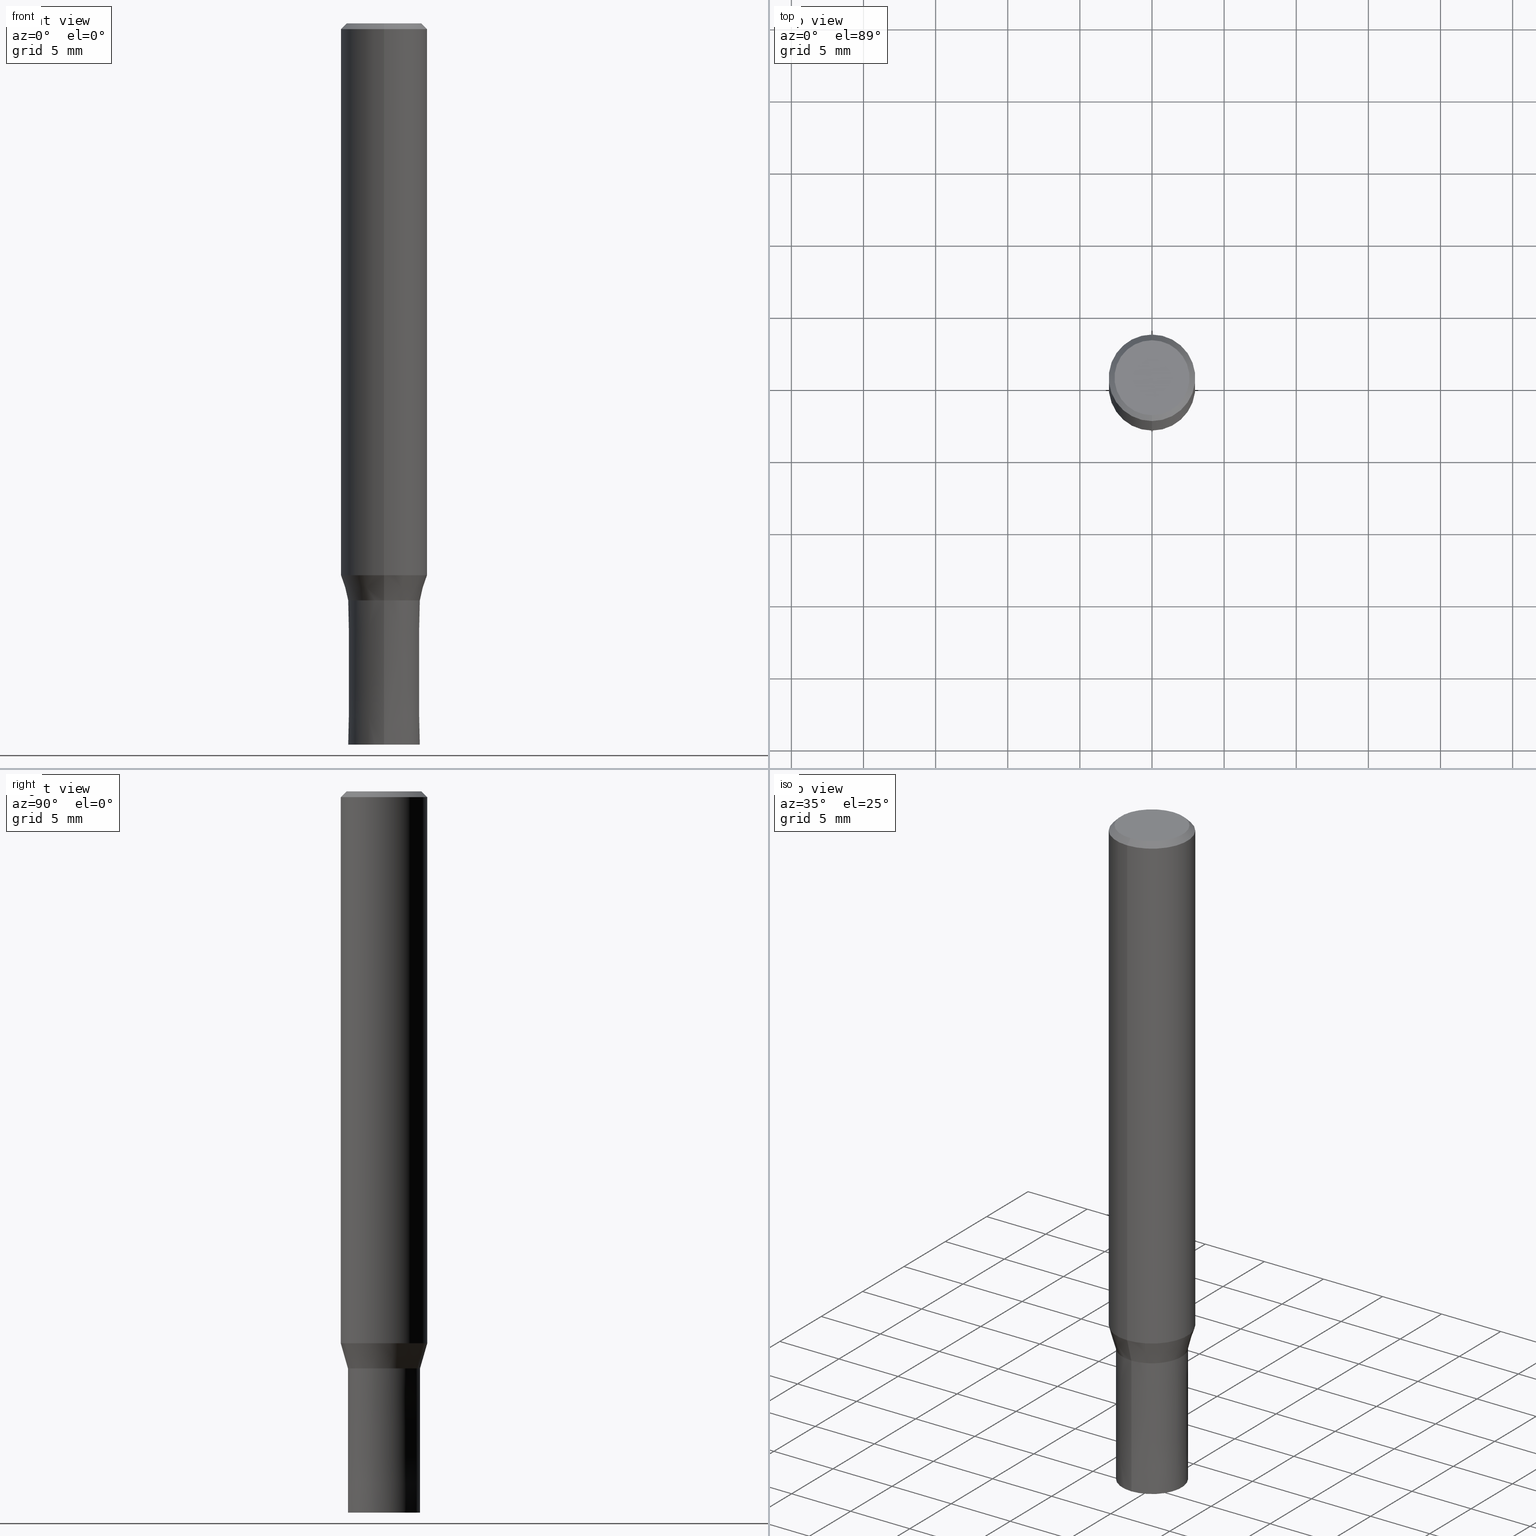
[diagram: canonical four-view strip — front | top / right | iso, engineering-drawing reading convention]
A machine part, canonical four-view strip (front | top / right | iso — engineering-drawing reading convention). The complete STEP part file that produces these views, byte-faithful:
ISO-10303-21;
HEADER;
FILE_DESCRIPTION(('no description'),'unknown implementation level');
FILE_NAME('HMS4050-1000-Huellk.stp','  ',('CIMSOURCE GmbH'),('CADClick - KiM GmbH - www.kimweb.de'),'unknown preprocess','ACIS','unknown authorization');
FILE_SCHEMA(('automotive_design'));
ENDSEC;
DATA;
#1=MECHANICAL_DESIGN_GEOMETRIC_PRESENTATION_REPRESENTATION(' ',(#14,#15,#16,#17,#18,#19,#20,#21,#22,#23,#24,#25,#26,#27,#28,#29,#30,#31,#32,#33,#34,#35,#36,#37,#38,#39,#40,#41,#42,#43,#44,#45,#46,#47,#48,#49,#50,#51,#52,#53,#54,#55,#56,#57,#58,#59,#60,#61,#62,#63,#64),#10);
#2=PRODUCT_DEFINITION_CONTEXT('',#65,'design');
#3=APPLICATION_PROTOCOL_DEFINITION('INTERNATIONAL STANDARD','automotive_design',1994,#65);
#4=PRODUCT_CATEGORY_RELATIONSHIP('NONE','NONE',#66,#67);
#5=SHAPE_DEFINITION_REPRESENTATION(#68,#69);
#6=PRODUCT_DEFINITION_CONTEXT('',#70,'design');
#7=APPLICATION_PROTOCOL_DEFINITION('INTERNATIONAL STANDARD','automotive_design',1994,#70);
#8=PRODUCT_CATEGORY_RELATIONSHIP('NONE','NONE',#71,#72);
#9=SHAPE_DEFINITION_REPRESENTATION(#73,#74);
#10= (GEOMETRIC_REPRESENTATION_CONTEXT(3)GLOBAL_UNCERTAINTY_ASSIGNED_CONTEXT((#77))GLOBAL_UNIT_ASSIGNED_CONTEXT((#79,#80,#81))REPRESENTATION_CONTEXT('NONE','WORKSPACE'));
#14=STYLED_ITEM('',(#83),#84);
#15=STYLED_ITEM('',(#85),#86);
#16=STYLED_ITEM('',(#87),#88);
#17=STYLED_ITEM('',(#89),#90);
#18=STYLED_ITEM('',(#91),#92);
#19=STYLED_ITEM('',(#93),#94);
#20=STYLED_ITEM('',(#95),#96);
#21=STYLED_ITEM('',(#97),#98);
#22=STYLED_ITEM('',(#99),#100);
#23=STYLED_ITEM('',(#101),#102);
#24=STYLED_ITEM('',(#103),#104);
#25=STYLED_ITEM('',(#105),#106);
#26=STYLED_ITEM('',(#107),#108);
#27=STYLED_ITEM('',(#109),#110);
#28=STYLED_ITEM('',(#111),#112);
#29=STYLED_ITEM('',(#113),#114);
#30=STYLED_ITEM('',(#115),#116);
#31=STYLED_ITEM('',(#117),#118);
#32=STYLED_ITEM('',(#119),#120);
#33=STYLED_ITEM('',(#121),#122);
#34=STYLED_ITEM('',(#123),#124);
#35=STYLED_ITEM('',(#125),#126);
#36=STYLED_ITEM('',(#127),#128);
#37=STYLED_ITEM('',(#129),#130);
#38=STYLED_ITEM('',(#131),#132);
#39=STYLED_ITEM('',(#133),#134);
#40=STYLED_ITEM('',(#135),#136);
#41=STYLED_ITEM('',(#137),#138);
#42=STYLED_ITEM('',(#139),#140);
#43=STYLED_ITEM('',(#141),#142);
#44=STYLED_ITEM('',(#143),#144);
#45=STYLED_ITEM('',(#145),#146);
#46=STYLED_ITEM('',(#147),#148);
#47=STYLED_ITEM('',(#149),#150);
#48=STYLED_ITEM('',(#151),#152);
#49=STYLED_ITEM('',(#153),#154);
#50=STYLED_ITEM('',(#155),#156);
#51=STYLED_ITEM('',(#157),#158);
#52=STYLED_ITEM('',(#159),#160);
#53=STYLED_ITEM('',(#161),#162);
#54=STYLED_ITEM('',(#163),#164);
#55=STYLED_ITEM('',(#165),#166);
#56=STYLED_ITEM('',(#167),#168);
#57=STYLED_ITEM('',(#169),#170);
#58=STYLED_ITEM('',(#171),#172);
#59=STYLED_ITEM('',(#173),#174);
#60=STYLED_ITEM('',(#175),#176);
#61=STYLED_ITEM('',(#177),#178);
#62=STYLED_ITEM('',(#179),#180);
#63=STYLED_ITEM('',(#181),#182);
#64=STYLED_ITEM('',(#183),#184);
#65=APPLICATION_CONTEXT(' ');
#66=PRODUCT_CATEGORY('part','NONE');
#67=PRODUCT_RELATED_PRODUCT_CATEGORY('detail',' ',(#185));
#68=PRODUCT_DEFINITION_SHAPE('NONE','NONE',#186);
#69=ADVANCED_BREP_SHAPE_REPRESENTATION('1',(#138,#187),#10);
#70=APPLICATION_CONTEXT(' ');
#71=PRODUCT_CATEGORY('part','NONE');
#72=PRODUCT_RELATED_PRODUCT_CATEGORY('detail',' ',(#188));
#73=PRODUCT_DEFINITION_SHAPE('NONE','NONE',#189);
#74=ADVANCED_BREP_SHAPE_REPRESENTATION('2',(#100,#190),#10);
#77=UNCERTAINTY_MEASURE_WITH_UNIT(LENGTH_MEASURE(1.0E-006),#79,'','');
#79= (CONVERSION_BASED_UNIT('MILLIMETRE',#193)LENGTH_UNIT()NAMED_UNIT(#196));
#80= (NAMED_UNIT(#198)PLANE_ANGLE_UNIT()SI_UNIT($,.RADIAN.));
#81= (NAMED_UNIT(#198)SOLID_ANGLE_UNIT()SI_UNIT($,.STERADIAN.));
#83=PRESENTATION_STYLE_ASSIGNMENT((#204));
#84=VERTEX_POINT('',#205);
#85=PRESENTATION_STYLE_ASSIGNMENT((#206));
#86=EDGE_CURVE('',#168,#84,#207,.T.);
#87=PRESENTATION_STYLE_ASSIGNMENT((#208));
#88=VERTEX_POINT('',#209);
#89=PRESENTATION_STYLE_ASSIGNMENT((#210));
#90=EDGE_CURVE('',#104,#94,#211,.T.);
#91=PRESENTATION_STYLE_ASSIGNMENT((#212));
#92=EDGE_CURVE('',#94,#104,#213,.T.);
#93=PRESENTATION_STYLE_ASSIGNMENT((#214));
#94=VERTEX_POINT('',#215);
#95=PRESENTATION_STYLE_ASSIGNMENT((#216));
#96=VERTEX_POINT('',#217);
#97=PRESENTATION_STYLE_ASSIGNMENT((#218));
#98=EDGE_CURVE('',#96,#120,#219,.T.);
#99=PRESENTATION_STYLE_ASSIGNMENT((#220));
#100=MANIFOLD_SOLID_BREP('2',#221);
#101=PRESENTATION_STYLE_ASSIGNMENT((#222));
#102=EDGE_CURVE('',#146,#128,#223,.T.);
#103=PRESENTATION_STYLE_ASSIGNMENT((#224));
#104=VERTEX_POINT('',#225);
#105=PRESENTATION_STYLE_ASSIGNMENT((#226));
#106=ADVANCED_FACE('',(#227),#228,.T.);
#107=PRESENTATION_STYLE_ASSIGNMENT((#229));
#108=ADVANCED_FACE('',(#230),#231,.T.);
#109=PRESENTATION_STYLE_ASSIGNMENT((#232));
#110=EDGE_CURVE('',#154,#180,#233,.T.);
#111=PRESENTATION_STYLE_ASSIGNMENT((#234));
#112=EDGE_CURVE('',#132,#172,#235,.T.);
#113=PRESENTATION_STYLE_ASSIGNMENT((#236));
#114=ADVANCED_FACE('',(#237),#238,.T.);
#115=PRESENTATION_STYLE_ASSIGNMENT((#239));
#116=EDGE_CURVE('',#156,#88,#240,.T.);
#117=PRESENTATION_STYLE_ASSIGNMENT((#241));
#118=ADVANCED_FACE('',(#242),#243,.T.);
#119=PRESENTATION_STYLE_ASSIGNMENT((#244));
#120=VERTEX_POINT('',#245);
#121=PRESENTATION_STYLE_ASSIGNMENT((#246));
#122=ADVANCED_FACE('',(#247,#248),#249,.T.);
#123=PRESENTATION_STYLE_ASSIGNMENT((#250));
#124=ADVANCED_FACE('',(#251),#252,.T.);
#125=PRESENTATION_STYLE_ASSIGNMENT((#253));
#126=ADVANCED_FACE('',(#254),#255,.T.);
#127=PRESENTATION_STYLE_ASSIGNMENT((#256));
#128=VERTEX_POINT('',#257);
#129=PRESENTATION_STYLE_ASSIGNMENT((#258));
#130=EDGE_CURVE('',#172,#128,#259,.T.);
#131=PRESENTATION_STYLE_ASSIGNMENT((#260));
#132=VERTEX_POINT('',#261);
#133=PRESENTATION_STYLE_ASSIGNMENT((#262));
#134=EDGE_CURVE('',#128,#146,#263,.T.);
#135=PRESENTATION_STYLE_ASSIGNMENT((#264));
#136=EDGE_CURVE('',#104,#180,#265,.T.);
#137=PRESENTATION_STYLE_ASSIGNMENT((#266));
#138=MANIFOLD_SOLID_BREP('1',#267);
#139=PRESENTATION_STYLE_ASSIGNMENT((#268));
#140=ADVANCED_FACE('',(#269),#270,.T.);
#141=PRESENTATION_STYLE_ASSIGNMENT((#271));
#142=ADVANCED_FACE('',(#272),#273,.T.);
#143=PRESENTATION_STYLE_ASSIGNMENT((#274));
#144=EDGE_CURVE('',#172,#132,#275,.T.);
#145=PRESENTATION_STYLE_ASSIGNMENT((#276));
#146=VERTEX_POINT('',#277);
#147=PRESENTATION_STYLE_ASSIGNMENT((#278));
#148=EDGE_CURVE('',#180,#168,#279,.T.);
#149=PRESENTATION_STYLE_ASSIGNMENT((#280));
#150=EDGE_CURVE('',#120,#156,#281,.T.);
#151=PRESENTATION_STYLE_ASSIGNMENT((#282));
#152=ADVANCED_FACE('',(#283),#284,.T.);
#153=PRESENTATION_STYLE_ASSIGNMENT((#285));
#154=VERTEX_POINT('',#286);
#155=PRESENTATION_STYLE_ASSIGNMENT((#287));
#156=VERTEX_POINT('',#288);
#157=PRESENTATION_STYLE_ASSIGNMENT((#289));
#158=EDGE_CURVE('',#180,#154,#290,.T.);
#159=PRESENTATION_STYLE_ASSIGNMENT((#291));
#160=EDGE_CURVE('',#154,#94,#292,.T.);
#161=PRESENTATION_STYLE_ASSIGNMENT((#293));
#162=EDGE_CURVE('',#156,#120,#294,.T.);
#163=PRESENTATION_STYLE_ASSIGNMENT((#295));
#164=EDGE_CURVE('',#96,#88,#296,.T.);
#165=PRESENTATION_STYLE_ASSIGNMENT((#297));
#166=ADVANCED_FACE('',(#298),#299,.T.);
#167=PRESENTATION_STYLE_ASSIGNMENT((#300));
#168=VERTEX_POINT('',#301);
#169=PRESENTATION_STYLE_ASSIGNMENT((#302));
#170=EDGE_CURVE('',#84,#154,#303,.T.);
#171=PRESENTATION_STYLE_ASSIGNMENT((#304));
#172=VERTEX_POINT('',#305);
#173=PRESENTATION_STYLE_ASSIGNMENT((#306));
#174=ADVANCED_FACE('',(#307),#308,.T.);
#175=PRESENTATION_STYLE_ASSIGNMENT((#309));
#176=EDGE_CURVE('',#146,#132,#310,.T.);
#177=PRESENTATION_STYLE_ASSIGNMENT((#311));
#178=EDGE_CURVE('',#84,#168,#312,.T.);
#179=PRESENTATION_STYLE_ASSIGNMENT((#313));
#180=VERTEX_POINT('',#314);
#181=PRESENTATION_STYLE_ASSIGNMENT((#315));
#182=EDGE_CURVE('',#88,#96,#316,.T.);
#183=PRESENTATION_STYLE_ASSIGNMENT((#317));
#184=ADVANCED_FACE('',(#318),#319,.T.);
#185=PRODUCT('1','1','PART-1-DESC',(#320));
#186=PRODUCT_DEFINITION('NONE','NONE',#321,#2);
#187=AXIS2_PLACEMENT_3D('',#322,#323,#324);
#188=PRODUCT('2','2','PART-2-DESC',(#325));
#189=PRODUCT_DEFINITION('NONE','NONE',#326,#6);
#190=AXIS2_PLACEMENT_3D('',#327,#328,#329);
#193=LENGTH_MEASURE_WITH_UNIT(LENGTH_MEASURE(1.0),#330);
#196=DIMENSIONAL_EXPONENTS(1.0,0.0,0.0,0.0,0.0,0.0,0.0);
#198=DIMENSIONAL_EXPONENTS(0.0,0.0,0.0,0.0,0.0,0.0,0.0);
#204=POINT_STYLE(' ',#331,POSITIVE_LENGTH_MEASURE(1.0E-006),#332);
#205=CARTESIAN_POINT('',(3.67381906146713E-016,-3.0,-38.256));
#206=CURVE_STYLE('',#333,POSITIVE_LENGTH_MEASURE(1.0E-006),#334);
#207=CIRCLE('',#335,3.0);
#208=POINT_STYLE(' ',#336,POSITIVE_LENGTH_MEASURE(1.0E-006),#337);
#209=CARTESIAN_POINT('',(0.0,2.5,-50.0));
#210=CURVE_STYLE('',#338,POSITIVE_LENGTH_MEASURE(1.0E-006),#339);
#211=CIRCLE('',#340,2.6);
#212=CURVE_STYLE('',#341,POSITIVE_LENGTH_MEASURE(1.0E-006),#342);
#213=CIRCLE('',#343,2.6);
#214=POINT_STYLE(' ',#344,POSITIVE_LENGTH_MEASURE(1.0E-006),#345);
#215=CARTESIAN_POINT('',(3.18397651993818E-016,-2.6,0.0));
#216=POINT_STYLE(' ',#346,POSITIVE_LENGTH_MEASURE(1.0E-006),#347);
#217=CARTESIAN_POINT('',(3.06151588455594E-016,-2.5,-50.0));
#218=CURVE_STYLE('',#348,POSITIVE_LENGTH_MEASURE(1.0E-006),#349);
#219=LINE('',#350,#351);
#220=SURFACE_STYLE_USAGE(.BOTH.,#352);
#221=CLOSED_SHELL('',(#140,#184,#142,#114));
#222=CURVE_STYLE('',#353,POSITIVE_LENGTH_MEASURE(1.0E-006),#354);
#223=CIRCLE('',#355,2.49995);
#224=POINT_STYLE(' ',#356,POSITIVE_LENGTH_MEASURE(1.0E-006),#357);
#225=CARTESIAN_POINT('',(0.0,2.6,0.0));
#226=SURFACE_STYLE_USAGE(.BOTH.,#358);
#227=FACE_OUTER_BOUND('',#359,.T.);
#228=CONICAL_SURFACE('',#360,2.8,0.78539816339745);
#229=SURFACE_STYLE_USAGE(.BOTH.,#361);
#230=FACE_OUTER_BOUND('',#362,.T.);
#231=CYLINDRICAL_SURFACE('',#363,3.0);
#232=CURVE_STYLE('',#364,POSITIVE_LENGTH_MEASURE(1.0E-006),#365);
#233=CIRCLE('',#366,3.0);
#234=CURVE_STYLE('',#367,POSITIVE_LENGTH_MEASURE(1.0E-006),#368);
#235=CIRCLE('',#369,2.99995);
#236=SURFACE_STYLE_USAGE(.BOTH.,#370);
#237=FACE_OUTER_BOUND('',#371,.T.);
#238=PLANE('',#372);
#239=CURVE_STYLE('',#373,POSITIVE_LENGTH_MEASURE(1.0E-006),#374);
#240=LINE('',#375,#376);
#241=SURFACE_STYLE_USAGE(.BOTH.,#377);
#242=FACE_OUTER_BOUND('',#378,.T.);
#243=CONICAL_SURFACE('',#379,2.8,0.78539816339745);
#244=POINT_STYLE(' ',#380,POSITIVE_LENGTH_MEASURE(1.0E-006),#381);
#245=CARTESIAN_POINT('',(3.06139342392056E-016,-2.4999,-40.0));
#246=SURFACE_STYLE_USAGE(.BOTH.,#382);
#247=FACE_OUTER_BOUND('',#383,.T.);
#248=FACE_BOUND('',#384,.T.);
#249=PLANE('',#385);
#250=SURFACE_STYLE_USAGE(.BOTH.,#386);
#251=FACE_OUTER_BOUND('',#387,.T.);
#252=PLANE('',#388);
#253=SURFACE_STYLE_USAGE(.BOTH.,#389);
#254=FACE_OUTER_BOUND('',#390,.T.);
#255=PLANE('',#391);
#256=POINT_STYLE(' ',#392,POSITIVE_LENGTH_MEASURE(1.0E-006),#393);
#257=CARTESIAN_POINT('',(0.0,2.49995,-40.0));
#258=CURVE_STYLE('',#394,POSITIVE_LENGTH_MEASURE(1.0E-006),#395);
#259=LINE('',#396,#397);
#260=POINT_STYLE(' ',#398,POSITIVE_LENGTH_MEASURE(1.0E-006),#399);
#261=CARTESIAN_POINT('',(3.67375783114944E-016,-2.99995,-38.256));
#262=CURVE_STYLE('',#400,POSITIVE_LENGTH_MEASURE(1.0E-006),#401);
#263=CIRCLE('',#402,2.49995);
#264=CURVE_STYLE('',#403,POSITIVE_LENGTH_MEASURE(1.0E-006),#404);
#265=LINE('',#405,#406);
#266=SURFACE_STYLE_USAGE(.BOTH.,#407);
#267=CLOSED_SHELL('',(#174,#108,#118,#122,#124,#106,#152,#166,#126));
#268=SURFACE_STYLE_USAGE(.BOTH.,#408);
#269=FACE_OUTER_BOUND('',#409,.T.);
#270=CONICAL_SURFACE('',#410,2.49995,9.99999999968777E-006);
#271=SURFACE_STYLE_USAGE(.BOTH.,#411);
#272=FACE_OUTER_BOUND('',#412,.T.);
#273=CONICAL_SURFACE('',#413,2.49995,9.99999999968777E-006);
#274=CURVE_STYLE('',#414,POSITIVE_LENGTH_MEASURE(1.0E-006),#415);
#275=CIRCLE('',#416,2.99995);
#276=POINT_STYLE(' ',#417,POSITIVE_LENGTH_MEASURE(1.0E-006),#418);
#277=CARTESIAN_POINT('',(3.06145465423825E-016,-2.49995,-40.0));
#278=CURVE_STYLE('',#419,POSITIVE_LENGTH_MEASURE(1.0E-006),#420);
#279=LINE('',#421,#422);
#280=CURVE_STYLE('',#423,POSITIVE_LENGTH_MEASURE(1.0E-006),#424);
#281=CIRCLE('',#425,2.4999);
#282=SURFACE_STYLE_USAGE(.BOTH.,#426);
#283=FACE_OUTER_BOUND('',#427,.T.);
#284=CYLINDRICAL_SURFACE('',#428,3.0);
#285=POINT_STYLE(' ',#429,POSITIVE_LENGTH_MEASURE(1.0E-006),#430);
#286=CARTESIAN_POINT('',(3.67381906146713E-016,-3.0,-0.399999999999999));
#287=POINT_STYLE(' ',#431,POSITIVE_LENGTH_MEASURE(1.0E-006),#432);
#288=CARTESIAN_POINT('',(0.0,2.4999,-40.0));
#289=CURVE_STYLE('',#433,POSITIVE_LENGTH_MEASURE(1.0E-006),#434);
#290=CIRCLE('',#435,3.0);
#291=CURVE_STYLE('',#436,POSITIVE_LENGTH_MEASURE(1.0E-006),#437);
#292=LINE('',#438,#439);
#293=CURVE_STYLE('',#440,POSITIVE_LENGTH_MEASURE(1.0E-006),#441);
#294=CIRCLE('',#442,2.4999);
#295=CURVE_STYLE('',#443,POSITIVE_LENGTH_MEASURE(1.0E-006),#444);
#296=CIRCLE('',#445,2.5);
#297=SURFACE_STYLE_USAGE(.BOTH.,#446);
#298=FACE_OUTER_BOUND('',#447,.T.);
#299=CONICAL_SURFACE('',#448,2.74995,0.279208199033747);
#300=POINT_STYLE(' ',#449,POSITIVE_LENGTH_MEASURE(1.0E-006),#450);
#301=CARTESIAN_POINT('',(0.0,3.0,-38.256));
#302=CURVE_STYLE('',#451,POSITIVE_LENGTH_MEASURE(1.0E-006),#452);
#303=LINE('',#453,#454);
#304=POINT_STYLE(' ',#455,POSITIVE_LENGTH_MEASURE(1.0E-006),#456);
#305=CARTESIAN_POINT('',(0.0,2.99995,-38.256));
#306=SURFACE_STYLE_USAGE(.BOTH.,#457);
#307=FACE_OUTER_BOUND('',#458,.T.);
#308=CONICAL_SURFACE('',#459,2.74995,0.279208199033747);
#309=CURVE_STYLE('',#460,POSITIVE_LENGTH_MEASURE(1.0E-006),#461);
#310=LINE('',#462,#463);
#311=CURVE_STYLE('',#464,POSITIVE_LENGTH_MEASURE(1.0E-006),#465);
#312=CIRCLE('',#466,3.0);
#313=POINT_STYLE(' ',#467,POSITIVE_LENGTH_MEASURE(1.0E-006),#468);
#314=CARTESIAN_POINT('',(0.0,3.0,-0.399999999999999));
#315=CURVE_STYLE('',#469,POSITIVE_LENGTH_MEASURE(1.0E-006),#470);
#316=CIRCLE('',#471,2.5);
#317=SURFACE_STYLE_USAGE(.BOTH.,#472);
#318=FACE_OUTER_BOUND('',#473,.T.);
#319=PLANE('',#474);
#320=PRODUCT_CONTEXT('',#65,'mechanical');
#321=PRODUCT_DEFINITION_FORMATION_WITH_SPECIFIED_SOURCE(' ','NONE',#185,.NOT_KNOWN.);
#322=CARTESIAN_POINT('',(0.0,0.0,0.0));
#323=DIRECTION('',(0.0,0.0,1.0));
#324=DIRECTION('',(1.0,0.0,0.0));
#325=PRODUCT_CONTEXT('',#70,'mechanical');
#326=PRODUCT_DEFINITION_FORMATION_WITH_SPECIFIED_SOURCE(' ','NONE',#188,.NOT_KNOWN.);
#327=CARTESIAN_POINT('',(0.0,0.0,0.0));
#328=DIRECTION('',(0.0,0.0,1.0));
#329=DIRECTION('',(1.0,0.0,0.0));
#330= (NAMED_UNIT(#196)LENGTH_UNIT()SI_UNIT(.MILLI.,.METRE.));
#331=PRE_DEFINED_MARKER('');
#332=COLOUR_RGB('',0.498039215803146,0.498039215803146,0.498039215803146);
#333=DRAUGHTING_PRE_DEFINED_CURVE_FONT('continuous');
#334=COLOUR_RGB('',0.498039215803146,0.498039215803146,0.498039215803146);
#335=AXIS2_PLACEMENT_3D('',#476,#477,#478);
#336=PRE_DEFINED_MARKER('');
#337=COLOUR_RGB('',0.800000011920929,0.800000011920929,0.800000011920929);
#338=DRAUGHTING_PRE_DEFINED_CURVE_FONT('continuous');
#339=COLOUR_RGB('',0.498039215803146,0.498039215803146,0.498039215803146);
#340=AXIS2_PLACEMENT_3D('',#479,#480,#481);
#341=DRAUGHTING_PRE_DEFINED_CURVE_FONT('continuous');
#342=COLOUR_RGB('',0.498039215803146,0.498039215803146,0.498039215803146);
#343=AXIS2_PLACEMENT_3D('',#482,#483,#484);
#344=PRE_DEFINED_MARKER('');
#345=COLOUR_RGB('',0.498039215803146,0.498039215803146,0.498039215803146);
#346=PRE_DEFINED_MARKER('');
#347=COLOUR_RGB('',0.800000011920929,0.800000011920929,0.800000011920929);
#348=DRAUGHTING_PRE_DEFINED_CURVE_FONT('continuous');
#349=COLOUR_RGB('',0.800000011920929,0.800000011920929,0.800000011920929);
#350=CARTESIAN_POINT('',(3.06145465423825E-016,-2.49995,-45.0));
#351=VECTOR('',#485,1.0);
#352=SURFACE_SIDE_STYLE('',(#486));
#353=DRAUGHTING_PRE_DEFINED_CURVE_FONT('continuous');
#354=COLOUR_RGB('',0.498039215803146,0.498039215803146,0.498039215803146);
#355=AXIS2_PLACEMENT_3D('',#487,#488,#489);
#356=PRE_DEFINED_MARKER('');
#357=COLOUR_RGB('',0.498039215803146,0.498039215803146,0.498039215803146);
#358=SURFACE_SIDE_STYLE('',(#490));
#359=EDGE_LOOP('',(#491,#492,#493,#494));
#360=AXIS2_PLACEMENT_3D('',#495,#496,#497);
#361=SURFACE_SIDE_STYLE('',(#498));
#362=EDGE_LOOP('',(#499,#500,#501,#502));
#363=AXIS2_PLACEMENT_3D('',#503,#504,#505);
#364=DRAUGHTING_PRE_DEFINED_CURVE_FONT('continuous');
#365=COLOUR_RGB('',0.498039215803146,0.498039215803146,0.498039215803146);
#366=AXIS2_PLACEMENT_3D('',#506,#507,#508);
#367=DRAUGHTING_PRE_DEFINED_CURVE_FONT('continuous');
#368=COLOUR_RGB('',0.498039215803146,0.498039215803146,0.498039215803146);
#369=AXIS2_PLACEMENT_3D('',#509,#510,#511);
#370=SURFACE_SIDE_STYLE('',(#512));
#371=EDGE_LOOP('',(#513,#514));
#372=AXIS2_PLACEMENT_3D('',#515,#516,#517);
#373=DRAUGHTING_PRE_DEFINED_CURVE_FONT('continuous');
#374=COLOUR_RGB('',0.800000011920929,0.800000011920929,0.800000011920929);
#375=CARTESIAN_POINT('',(-3.06145465423825E-016,2.49995,-45.0));
#376=VECTOR('',#518,1.0);
#377=SURFACE_SIDE_STYLE('',(#519));
#378=EDGE_LOOP('',(#520,#521,#522,#523));
#379=AXIS2_PLACEMENT_3D('',#524,#525,#526);
#380=PRE_DEFINED_MARKER('');
#381=COLOUR_RGB('',0.800000011920929,0.800000011920929,0.800000011920929);
#382=SURFACE_SIDE_STYLE('',(#527));
#383=EDGE_LOOP('',(#528,#529));
#384=EDGE_LOOP('',(#530,#531));
#385=AXIS2_PLACEMENT_3D('',#532,#533,#534);
#386=SURFACE_SIDE_STYLE('',(#535));
#387=EDGE_LOOP('',(#536,#537));
#388=AXIS2_PLACEMENT_3D('',#538,#539,#540);
#389=SURFACE_SIDE_STYLE('',(#541));
#390=EDGE_LOOP('',(#542,#543));
#391=AXIS2_PLACEMENT_3D('',#544,#545,#546);
#392=PRE_DEFINED_MARKER('');
#393=COLOUR_RGB('',0.498039215803146,0.498039215803146,0.498039215803146);
#394=DRAUGHTING_PRE_DEFINED_CURVE_FONT('continuous');
#395=COLOUR_RGB('',0.498039215803146,0.498039215803146,0.498039215803146);
#396=CARTESIAN_POINT('',(-3.36760624269385E-016,2.74995,-39.128));
#397=VECTOR('',#547,1.0);
#398=PRE_DEFINED_MARKER('');
#399=COLOUR_RGB('',0.498039215803146,0.498039215803146,0.498039215803146);
#400=DRAUGHTING_PRE_DEFINED_CURVE_FONT('continuous');
#401=COLOUR_RGB('',0.498039215803146,0.498039215803146,0.498039215803146);
#402=AXIS2_PLACEMENT_3D('',#548,#549,#550);
#403=DRAUGHTING_PRE_DEFINED_CURVE_FONT('continuous');
#404=COLOUR_RGB('',0.498039215803146,0.498039215803146,0.498039215803146);
#405=CARTESIAN_POINT('',(-3.42889779070266E-016,2.8,-0.199999999999996));
#406=VECTOR('',#551,1.0);
#407=SURFACE_SIDE_STYLE('',(#552));
#408=SURFACE_SIDE_STYLE('',(#553));
#409=EDGE_LOOP('',(#554,#555,#556,#557));
#410=AXIS2_PLACEMENT_3D('',#558,#559,#560);
#411=SURFACE_SIDE_STYLE('',(#561));
#412=EDGE_LOOP('',(#562,#563,#564,#565));
#413=AXIS2_PLACEMENT_3D('',#566,#567,#568);
#414=DRAUGHTING_PRE_DEFINED_CURVE_FONT('continuous');
#415=COLOUR_RGB('',0.498039215803146,0.498039215803146,0.498039215803146);
#416=AXIS2_PLACEMENT_3D('',#569,#570,#571);
#417=PRE_DEFINED_MARKER('');
#418=COLOUR_RGB('',0.498039215803146,0.498039215803146,0.498039215803146);
#419=DRAUGHTING_PRE_DEFINED_CURVE_FONT('continuous');
#420=COLOUR_RGB('',0.498039215803146,0.498039215803146,0.498039215803146);
#421=CARTESIAN_POINT('',(-3.67381906146713E-016,3.0,-19.328));
#422=VECTOR('',#572,1.0);
#423=DRAUGHTING_PRE_DEFINED_CURVE_FONT('continuous');
#424=COLOUR_RGB('',0.800000011920929,0.800000011920929,0.800000011920929);
#425=AXIS2_PLACEMENT_3D('',#573,#574,#575);
#426=SURFACE_SIDE_STYLE('',(#576));
#427=EDGE_LOOP('',(#577,#578,#579,#580));
#428=AXIS2_PLACEMENT_3D('',#581,#582,#583);
#429=PRE_DEFINED_MARKER('');
#430=COLOUR_RGB('',0.498039215803146,0.498039215803146,0.498039215803146);
#431=PRE_DEFINED_MARKER('');
#432=COLOUR_RGB('',0.800000011920929,0.800000011920929,0.800000011920929);
#433=DRAUGHTING_PRE_DEFINED_CURVE_FONT('continuous');
#434=COLOUR_RGB('',0.498039215803146,0.498039215803146,0.498039215803146);
#435=AXIS2_PLACEMENT_3D('',#584,#585,#586);
#436=DRAUGHTING_PRE_DEFINED_CURVE_FONT('continuous');
#437=COLOUR_RGB('',0.498039215803146,0.498039215803146,0.498039215803146);
#438=CARTESIAN_POINT('',(3.42889779070266E-016,-2.8,-0.199999999999996));
#439=VECTOR('',#587,1.0);
#440=DRAUGHTING_PRE_DEFINED_CURVE_FONT('continuous');
#441=COLOUR_RGB('',0.800000011920929,0.800000011920929,0.800000011920929);
#442=AXIS2_PLACEMENT_3D('',#588,#589,#590);
#443=DRAUGHTING_PRE_DEFINED_CURVE_FONT('continuous');
#444=COLOUR_RGB('',0.800000011920929,0.800000011920929,0.800000011920929);
#445=AXIS2_PLACEMENT_3D('',#591,#592,#593);
#446=SURFACE_SIDE_STYLE('',(#594));
#447=EDGE_LOOP('',(#595,#596,#597,#598));
#448=AXIS2_PLACEMENT_3D('',#599,#600,#601);
#449=PRE_DEFINED_MARKER('');
#450=COLOUR_RGB('',0.498039215803146,0.498039215803146,0.498039215803146);
#451=DRAUGHTING_PRE_DEFINED_CURVE_FONT('continuous');
#452=COLOUR_RGB('',0.498039215803146,0.498039215803146,0.498039215803146);
#453=CARTESIAN_POINT('',(3.67381906146713E-016,-3.0,-19.328));
#454=VECTOR('',#602,1.0);
#455=PRE_DEFINED_MARKER('');
#456=COLOUR_RGB('',0.498039215803146,0.498039215803146,0.498039215803146);
#457=SURFACE_SIDE_STYLE('',(#603));
#458=EDGE_LOOP('',(#604,#605,#606,#607));
#459=AXIS2_PLACEMENT_3D('',#608,#609,#610);
#460=DRAUGHTING_PRE_DEFINED_CURVE_FONT('continuous');
#461=COLOUR_RGB('',0.498039215803146,0.498039215803146,0.498039215803146);
#462=CARTESIAN_POINT('',(3.36760624269385E-016,-2.74995,-39.128));
#463=VECTOR('',#611,1.0);
#464=DRAUGHTING_PRE_DEFINED_CURVE_FONT('continuous');
#465=COLOUR_RGB('',0.498039215803146,0.498039215803146,0.498039215803146);
#466=AXIS2_PLACEMENT_3D('',#612,#613,#614);
#467=PRE_DEFINED_MARKER('');
#468=COLOUR_RGB('',0.498039215803146,0.498039215803146,0.498039215803146);
#469=DRAUGHTING_PRE_DEFINED_CURVE_FONT('continuous');
#470=COLOUR_RGB('',0.800000011920929,0.800000011920929,0.800000011920929);
#471=AXIS2_PLACEMENT_3D('',#615,#616,#617);
#472=SURFACE_SIDE_STYLE('',(#618));
#473=EDGE_LOOP('',(#619,#620));
#474=AXIS2_PLACEMENT_3D('',#621,#622,#623);
#476=CARTESIAN_POINT('',(0.0,0.0,-38.256));
#477=DIRECTION('',(0.0,0.0,-1.0));
#478=DIRECTION('',(0.0,1.0,0.0));
#479=CARTESIAN_POINT('',(0.0,0.0,0.0));
#480=DIRECTION('',(0.0,0.0,-1.0));
#481=DIRECTION('',(0.0,1.0,0.0));
#482=CARTESIAN_POINT('',(0.0,0.0,0.0));
#483=DIRECTION('',(0.0,0.0,-1.0));
#484=DIRECTION('',(0.0,1.0,0.0));
#485=DIRECTION('',(-1.22460635376373E-021,9.9999999995211E-006,0.99999999995));
#486=SURFACE_STYLE_FILL_AREA(#624);
#487=CARTESIAN_POINT('',(0.0,0.0,-40.0));
#488=DIRECTION('',(0.0,0.0,-1.0));
#489=DIRECTION('',(0.0,1.0,0.0));
#490=SURFACE_STYLE_FILL_AREA(#625);
#491=ORIENTED_EDGE('',*,*,#136,.T.);
#492=ORIENTED_EDGE('',*,*,#110,.F.);
#493=ORIENTED_EDGE('',*,*,#160,.T.);
#494=ORIENTED_EDGE('',*,*,#92,.T.);
#495=CARTESIAN_POINT('',(0.0,0.0,-0.199999999999996));
#496=DIRECTION('',(0.0,-0.0,-1.0));
#497=DIRECTION('',(0.0,1.0,0.0));
#498=SURFACE_STYLE_FILL_AREA(#626);
#499=ORIENTED_EDGE('',*,*,#148,.F.);
#500=ORIENTED_EDGE('',*,*,#158,.T.);
#501=ORIENTED_EDGE('',*,*,#170,.F.);
#502=ORIENTED_EDGE('',*,*,#86,.F.);
#503=CARTESIAN_POINT('',(0.0,0.0,-19.328));
#504=DIRECTION('',(-0.0,-0.0,1.0));
#505=DIRECTION('',(0.0,1.0,0.0));
#506=CARTESIAN_POINT('',(0.0,0.0,-0.399999999999999));
#507=DIRECTION('',(0.0,0.0,-1.0));
#508=DIRECTION('',(0.0,1.0,0.0));
#509=CARTESIAN_POINT('',(0.0,0.0,-38.256));
#510=DIRECTION('',(0.0,0.0,-1.0));
#511=DIRECTION('',(0.0,1.0,0.0));
#512=SURFACE_STYLE_FILL_AREA(#627);
#513=ORIENTED_EDGE('',*,*,#182,.T.);
#514=ORIENTED_EDGE('',*,*,#164,.T.);
#515=CARTESIAN_POINT('',(0.0,1.2475,-50.0));
#516=DIRECTION('',(0.0,0.0,-1.0));
#517=DIRECTION('',(0.0,1.0,0.0));
#518=DIRECTION('',(-1.22460635376373E-021,9.9999999995211E-006,-0.99999999995));
#519=SURFACE_STYLE_FILL_AREA(#628);
#520=ORIENTED_EDGE('',*,*,#136,.F.);
#521=ORIENTED_EDGE('',*,*,#90,.T.);
#522=ORIENTED_EDGE('',*,*,#160,.F.);
#523=ORIENTED_EDGE('',*,*,#158,.F.);
#524=CARTESIAN_POINT('',(0.0,0.0,-0.199999999999996));
#525=DIRECTION('',(0.0,-0.0,-1.0));
#526=DIRECTION('',(0.0,1.0,0.0));
#527=SURFACE_STYLE_FILL_AREA(#629);
#528=ORIENTED_EDGE('',*,*,#86,.T.);
#529=ORIENTED_EDGE('',*,*,#178,.T.);
#530=ORIENTED_EDGE('',*,*,#144,.F.);
#531=ORIENTED_EDGE('',*,*,#112,.F.);
#532=CARTESIAN_POINT('',(0.0,1.5,-38.256));
#533=DIRECTION('',(0.0,0.0,-1.0));
#534=DIRECTION('',(0.0,1.0,0.0));
#535=SURFACE_STYLE_FILL_AREA(#630);
#536=ORIENTED_EDGE('',*,*,#90,.F.);
#537=ORIENTED_EDGE('',*,*,#92,.F.);
#538=CARTESIAN_POINT('',(0.0,1.3,0.0));
#539=DIRECTION('',(-0.0,0.0,1.0));
#540=DIRECTION('',(0.0,-1.0,0.0));
#541=SURFACE_STYLE_FILL_AREA(#631);
#542=ORIENTED_EDGE('',*,*,#134,.T.);
#543=ORIENTED_EDGE('',*,*,#102,.T.);
#544=CARTESIAN_POINT('',(0.0,1.249975,-40.0));
#545=DIRECTION('',(0.0,0.0,-1.0));
#546=DIRECTION('',(0.0,1.0,0.0));
#547=DIRECTION('',(3.37494895041124E-017,-0.275594597388538,-0.961273955691222));
#548=CARTESIAN_POINT('',(0.0,0.0,-40.0));
#549=DIRECTION('',(0.0,0.0,-1.0));
#550=DIRECTION('',(0.0,1.0,0.0));
#551=DIRECTION('',(-8.65927457071937E-017,0.707106781186549,-0.707106781186546));
#552=SURFACE_STYLE_FILL_AREA(#632);
#553=SURFACE_STYLE_FILL_AREA(#633);
#554=ORIENTED_EDGE('',*,*,#116,.F.);
#555=ORIENTED_EDGE('',*,*,#162,.T.);
#556=ORIENTED_EDGE('',*,*,#98,.F.);
#557=ORIENTED_EDGE('',*,*,#182,.F.);
#558=CARTESIAN_POINT('',(0.0,0.0,-45.0));
#559=DIRECTION('',(0.0,-0.0,-1.0));
#560=DIRECTION('',(0.0,1.0,0.0));
#561=SURFACE_STYLE_FILL_AREA(#634);
#562=ORIENTED_EDGE('',*,*,#116,.T.);
#563=ORIENTED_EDGE('',*,*,#164,.F.);
#564=ORIENTED_EDGE('',*,*,#98,.T.);
#565=ORIENTED_EDGE('',*,*,#150,.T.);
#566=CARTESIAN_POINT('',(0.0,0.0,-45.0));
#567=DIRECTION('',(0.0,-0.0,-1.0));
#568=DIRECTION('',(0.0,1.0,0.0));
#569=CARTESIAN_POINT('',(0.0,0.0,-38.256));
#570=DIRECTION('',(0.0,0.0,-1.0));
#571=DIRECTION('',(0.0,1.0,0.0));
#572=DIRECTION('',(0.0,0.0,-1.0));
#573=CARTESIAN_POINT('',(0.0,0.0,-40.0));
#574=DIRECTION('',(0.0,0.0,-1.0));
#575=DIRECTION('',(0.0,1.0,0.0));
#576=SURFACE_STYLE_FILL_AREA(#635);
#577=ORIENTED_EDGE('',*,*,#148,.T.);
#578=ORIENTED_EDGE('',*,*,#178,.F.);
#579=ORIENTED_EDGE('',*,*,#170,.T.);
#580=ORIENTED_EDGE('',*,*,#110,.T.);
#581=CARTESIAN_POINT('',(0.0,0.0,-19.328));
#582=DIRECTION('',(-0.0,-0.0,1.0));
#583=DIRECTION('',(0.0,1.0,0.0));
#584=CARTESIAN_POINT('',(0.0,0.0,-0.399999999999999));
#585=DIRECTION('',(0.0,0.0,-1.0));
#586=DIRECTION('',(0.0,1.0,0.0));
#587=DIRECTION('',(-8.65927457071937E-017,0.707106781186549,0.707106781186546));
#588=CARTESIAN_POINT('',(0.0,0.0,-40.0));
#589=DIRECTION('',(0.0,0.0,-1.0));
#590=DIRECTION('',(0.0,1.0,0.0));
#591=CARTESIAN_POINT('',(0.0,0.0,-50.0));
#592=DIRECTION('',(0.0,0.0,-1.0));
#593=DIRECTION('',(0.0,1.0,0.0));
#594=SURFACE_STYLE_FILL_AREA(#636);
#595=ORIENTED_EDGE('',*,*,#130,.T.);
#596=ORIENTED_EDGE('',*,*,#102,.F.);
#597=ORIENTED_EDGE('',*,*,#176,.T.);
#598=ORIENTED_EDGE('',*,*,#112,.T.);
#599=CARTESIAN_POINT('',(0.0,0.0,-39.128));
#600=DIRECTION('',(-0.0,-0.0,1.0));
#601=DIRECTION('',(0.0,1.0,0.0));
#602=DIRECTION('',(-0.0,-0.0,1.0));
#603=SURFACE_STYLE_FILL_AREA(#637);
#604=ORIENTED_EDGE('',*,*,#130,.F.);
#605=ORIENTED_EDGE('',*,*,#144,.T.);
#606=ORIENTED_EDGE('',*,*,#176,.F.);
#607=ORIENTED_EDGE('',*,*,#134,.F.);
#608=CARTESIAN_POINT('',(0.0,0.0,-39.128));
#609=DIRECTION('',(-0.0,-0.0,1.0));
#610=DIRECTION('',(0.0,1.0,0.0));
#611=DIRECTION('',(3.37494895041124E-017,-0.275594597388538,0.961273955691222));
#612=CARTESIAN_POINT('',(0.0,0.0,-38.256));
#613=DIRECTION('',(0.0,0.0,-1.0));
#614=DIRECTION('',(0.0,1.0,0.0));
#615=CARTESIAN_POINT('',(0.0,0.0,-50.0));
#616=DIRECTION('',(0.0,0.0,-1.0));
#617=DIRECTION('',(0.0,1.0,0.0));
#618=SURFACE_STYLE_FILL_AREA(#638);
#619=ORIENTED_EDGE('',*,*,#162,.F.);
#620=ORIENTED_EDGE('',*,*,#150,.F.);
#621=CARTESIAN_POINT('',(0.0,1.24995,-40.0));
#622=DIRECTION('',(-0.0,0.0,1.0));
#623=DIRECTION('',(0.0,-1.0,0.0));
#624=FILL_AREA_STYLE('',(#639));
#625=FILL_AREA_STYLE('',(#640));
#626=FILL_AREA_STYLE('',(#641));
#627=FILL_AREA_STYLE('',(#642));
#628=FILL_AREA_STYLE('',(#643));
#629=FILL_AREA_STYLE('',(#644));
#630=FILL_AREA_STYLE('',(#645));
#631=FILL_AREA_STYLE('',(#646));
#632=FILL_AREA_STYLE('',(#647));
#633=FILL_AREA_STYLE('',(#648));
#634=FILL_AREA_STYLE('',(#649));
#635=FILL_AREA_STYLE('',(#650));
#636=FILL_AREA_STYLE('',(#651));
#637=FILL_AREA_STYLE('',(#652));
#638=FILL_AREA_STYLE('',(#653));
#639=FILL_AREA_STYLE_COLOUR('',#654);
#640=FILL_AREA_STYLE_COLOUR('',#655);
#641=FILL_AREA_STYLE_COLOUR('',#656);
#642=FILL_AREA_STYLE_COLOUR('',#657);
#643=FILL_AREA_STYLE_COLOUR('',#658);
#644=FILL_AREA_STYLE_COLOUR('',#659);
#645=FILL_AREA_STYLE_COLOUR('',#660);
#646=FILL_AREA_STYLE_COLOUR('',#661);
#647=FILL_AREA_STYLE_COLOUR('',#662);
#648=FILL_AREA_STYLE_COLOUR('',#663);
#649=FILL_AREA_STYLE_COLOUR('',#664);
#650=FILL_AREA_STYLE_COLOUR('',#665);
#651=FILL_AREA_STYLE_COLOUR('',#666);
#652=FILL_AREA_STYLE_COLOUR('',#667);
#653=FILL_AREA_STYLE_COLOUR('',#668);
#654=COLOUR_RGB('',0.800000011920929,0.800000011920929,0.800000011920929);
#655=COLOUR_RGB('',0.498039215803146,0.498039215803146,0.498039215803146);
#656=COLOUR_RGB('',0.498039215803146,0.498039215803146,0.498039215803146);
#657=COLOUR_RGB('',0.800000011920929,0.800000011920929,0.800000011920929);
#658=COLOUR_RGB('',0.498039215803146,0.498039215803146,0.498039215803146);
#659=COLOUR_RGB('',0.498039215803146,0.498039215803146,0.498039215803146);
#660=COLOUR_RGB('',0.498039215803146,0.498039215803146,0.498039215803146);
#661=COLOUR_RGB('',0.498039215803146,0.498039215803146,0.498039215803146);
#662=COLOUR_RGB('',0.498039215803146,0.498039215803146,0.498039215803146);
#663=COLOUR_RGB('',0.800000011920929,0.800000011920929,0.800000011920929);
#664=COLOUR_RGB('',0.800000011920929,0.800000011920929,0.800000011920929);
#665=COLOUR_RGB('',0.498039215803146,0.498039215803146,0.498039215803146);
#666=COLOUR_RGB('',0.498039215803146,0.498039215803146,0.498039215803146);
#667=COLOUR_RGB('',0.498039215803146,0.498039215803146,0.498039215803146);
#668=COLOUR_RGB('',0.800000011920929,0.800000011920929,0.800000011920929);
#669=AXIS2_PLACEMENT_3D('PCS',#670,#671,#672);
#670=CARTESIAN_POINT('',(0.0,0.0,0.0));
#671=DIRECTION('',(0.0,0.0,1.0));
#672=DIRECTION('',(1.0,0.0,0.0));
#673=AXIS2_PLACEMENT_3D('CIP',#674,#675,#676);
#674=CARTESIAN_POINT('',(0.0,0.0,-50.0));
#675=DIRECTION('',(0.0,0.0,1.0));
#676=DIRECTION('',(1.0,0.0,0.0));
#677=AXIS2_PLACEMENT_3D('CRP',#678,#679,#680);
#678=CARTESIAN_POINT('',(-2.5,0.0,-50.0));
#679=DIRECTION('',(0.0,0.0,1.0));
#680=DIRECTION('',(1.0,0.0,0.0));
#681=AXIS2_PLACEMENT_3D('MCS',#682,#683,#684);
#682=CARTESIAN_POINT('',(0.0,0.0,-38.256));
#683=DIRECTION('',(0.0,0.0,1.0));
#684=DIRECTION('',(1.0,0.0,0.0));
#685=CONSTRUCTIVE_GEOMETRY_REPRESENTATION_RELATIONSHIP('coordinate systems',$,#69,#686);
#686=CONSTRUCTIVE_GEOMETRY_REPRESENTATION('coordinate systems',(#669,#673,#677,#681),#10);
ENDSEC;
END-ISO-10303-21;
